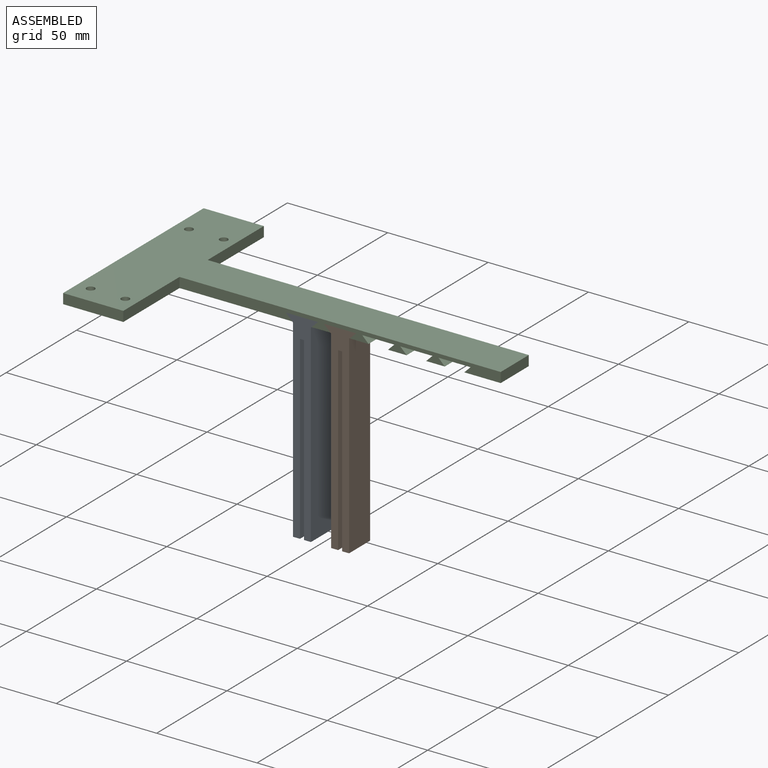
[diagram: assembled view]
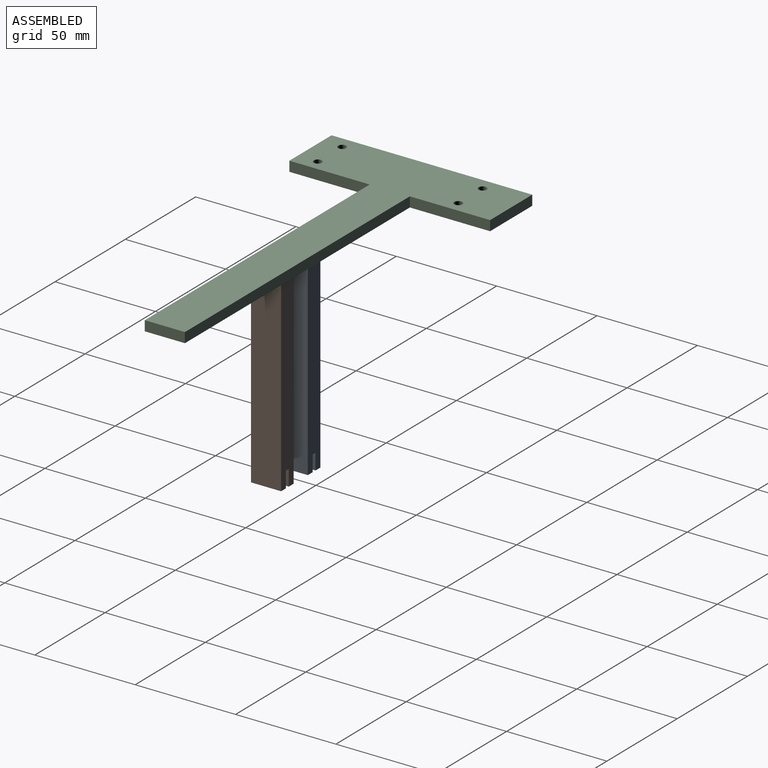
[diagram: assembled view, second angle]
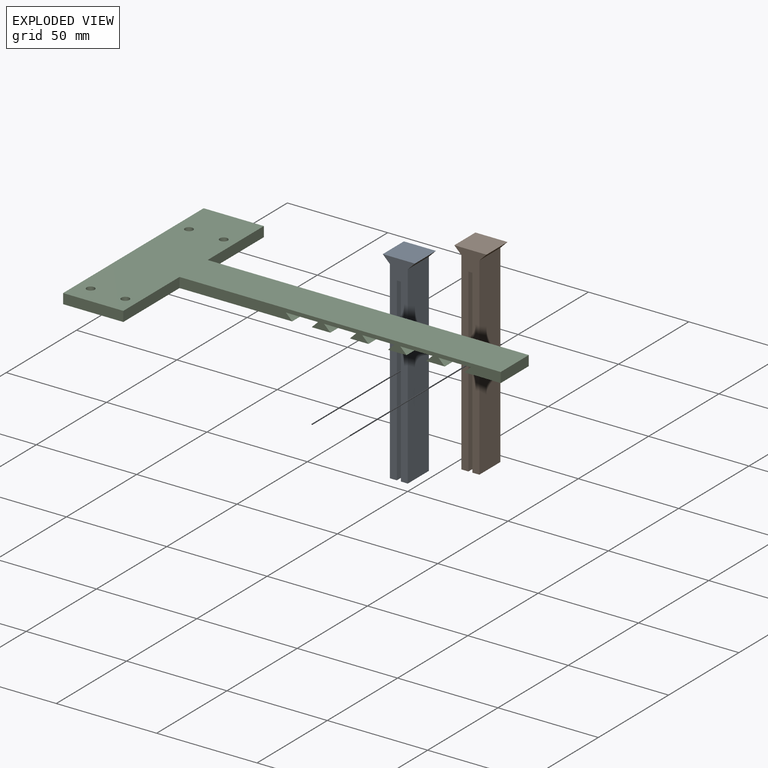
[diagram: exploded view]
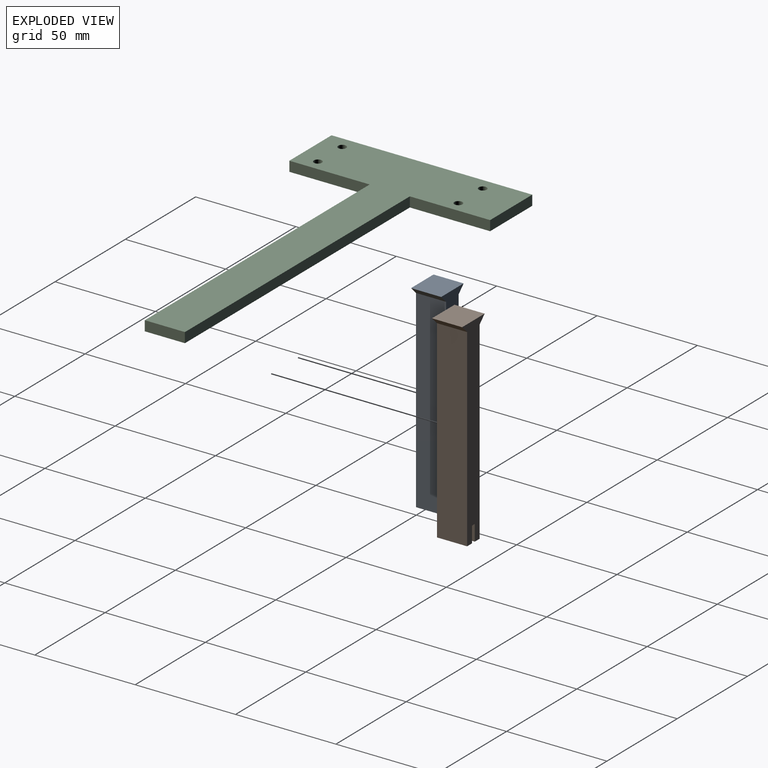
[diagram: exploded view, second angle]
ASSEMBLY  parts=3 mates=2
PART A: 14 faces, bbox 16x15x100 mm
  f0: plane 15x3.46mm, normal (0,0,-1), area 51.9mm2, adj f3,f7,f8,f10
  f1: plane 16x15mm, normal (0,0,1), area 240mm2, adj f2,f6,f7,f8
  f2: plane 15x3.54mm, normal (-0.71,0,-0.71), area 75mm2, adj f1,f3,f7,f8
  f3: plane 96.46x15mm, normal (-1,0,0), area 1447mm2, adj f0,f2,f7,f8
  f4: plane 15x3.47mm, normal (0,0,-1), area 52mm2, adj f5,f7,f8,f9
  f5: plane 96.46x15mm, normal (1,0,0), area 1447mm2, adj f4,f6,f7,f8
  f6: plane 15x3.54mm, normal (0.71,0,-0.71), area 75mm2, adj f1,f5,f7,f8
  f7: plane 100x16mm, normal (0,-1,0), area 889.4mm2, adj f0,f1,f2,f3,f4,f5,f6,f9
  f8: plane 100x16mm, normal (0,1,0), area 725.4mm2, adj f0,f1,f2,f3,f4,f5,f6,f9
  f9: plane 90x15mm, normal (-1,0,0), area 530mm2, adj f4,f7,f8,f11,f12,f13
  f10: plane 90x15mm, normal (1,0,0), area 530mm2, adj f0,f7,f8,f11,f12,f13
  f11: plane 5x2mm, normal (0,0,-1), area 10mm2, adj f8,f9,f10,f12
  f12: plane 82x2mm, normal (0,1,0), area 164mm2, adj f9,f10,f11,f13
  f13: plane 10x2mm, normal (0,0,-1), area 20mm2, adj f7,f9,f10,f12
PART B: same geometry as A
PART C: 63 faces, bbox 190x100x5 mm
  f0: cylinder r=2mm len=4mm, axis (0,0,-1), area 37.7mm2, adj f12,f40
  f1: cylinder r=2mm len=4mm, axis (0,0,-1), area 37.7mm2, adj f12,f62
  f2: cylinder r=2mm len=4mm, axis (0,0,-1), area 37.7mm2, adj f12,f55
  f3: cylinder r=2mm len=4mm, axis (0,0,-1), area 37.7mm2, adj f12,f48
  f4: plane 100x5mm, normal (-1,0,0), area 500mm2, adj f5,f11,f12,f13
  f5: plane 30x5mm, normal (0,-1,0), area 150mm2, adj f4,f6,f12,f13
  f6: plane 40x5mm, normal (1,0,0), area 200mm2, adj f5,f7,f12,f13
  f7: plane 160x5mm, normal (0,-1,0), area 598.1mm2, adj f6,f8,f12,f13,f14,f15,f16,f18
  f8: plane 20x5mm, normal (1,0,0), area 100mm2, adj f7,f9,f12,f13
  f9: plane 160x5mm, normal (0,1,0), area 800mm2, adj f8,f10,f12,f13
  f10: plane 40x5mm, normal (1,0,0), area 200mm2, adj f9,f11,f12,f13
  f11: plane 30x5mm, normal (0,1,0), area 150mm2, adj f4,f10,f12,f13
  f12: plane 190x100mm, normal (0,0,1), area 6149.7mm2, adj f0,f1,f2,f3,f4,f5,f6,f7
  f13: plane 190x100mm, normal (0,0,-1), area 5302.1mm2, adj f4,f5,f6,f7,f8,f9,f10,f11
  f14: plane 15x3.14mm, normal (0.71,0,0.71), area 66.6mm2, adj f7,f13,f16,f17
  f15: plane 15x3.14mm, normal (-0.71,0,0.71), area 66.6mm2, adj f7,f13,f16,f17
  f16: plane 16x15mm, normal (0,0,-1), area 240mm2, adj f7,f14,f15,f17
  f17: plane 16x3.14mm, normal (0,-1,0), area 40.4mm2, adj f13,f14,f15,f16
  f18: plane 15x3.14mm, normal (0.71,0,0.71), area 66.6mm2, adj f7,f13,f20,f21
  f19: plane 15x3.14mm, normal (-0.71,0,0.71), area 66.6mm2, adj f7,f13,f20,f21
  f20: plane 16x15mm, normal (0,0,-1), area 240mm2, adj f7,f18,f19,f21
  f21: plane 16x3.14mm, normal (0,-1,0), area 40.4mm2, adj f13,f18,f19,f20
  f22: plane 15x3.14mm, normal (0.71,0,0.71), area 66.6mm2, adj f7,f13,f24,f25
  f23: plane 15x3.14mm, normal (-0.71,0,0.71), area 66.6mm2, adj f7,f13,f24,f25
  f24: plane 16x15mm, normal (0,0,-1), area 240mm2, adj f7,f22,f23,f25
  f25: plane 16x3.14mm, normal (0,-1,0), area 40.4mm2, adj f13,f22,f23,f24
  f26: plane 15x3.14mm, normal (0.71,0,0.71), area 66.6mm2, adj f7,f13,f28,f29
  f27: plane 15x3.14mm, normal (-0.71,0,0.71), area 66.6mm2, adj f7,f13,f28,f29
  f28: plane 16x15mm, normal (0,0,-1), area 240mm2, adj f7,f26,f27,f29
  f29: plane 16x3.14mm, normal (0,-1,0), area 40.4mm2, adj f13,f26,f27,f28
  f30: plane 15x3.14mm, normal (0.71,0,0.71), area 66.6mm2, adj f7,f13,f32,f33
  f31: plane 15x3.14mm, normal (-0.71,0,0.71), area 66.6mm2, adj f7,f13,f32,f33
  f32: plane 16x15mm, normal (0,0,-1), area 240mm2, adj f7,f30,f31,f33
  f33: plane 16x3.14mm, normal (0,-1,0), area 40.4mm2, adj f13,f30,f31,f32
  f34: plane 3.5x2.02mm, normal (0.87,-0.5,0), area 8.1mm2, adj f13,f35,f39,f40
  f35: plane 4.04x2mm, normal (0,-1,0), area 8.1mm2, adj f13,f34,f36,f40
  f36: plane 3.5x2.02mm, normal (-0.87,-0.5,0), area 8.1mm2, adj f13,f35,f37,f40
  f37: plane 3.5x2.02mm, normal (-0.87,0.5,0), area 8.1mm2, adj f13,f36,f38,f40
  f38: plane 4.04x2mm, normal (0,1,0), area 8.1mm2, adj f13,f37,f39,f40
  f39: plane 3.5x2.02mm, normal (0.87,0.5,0), area 8.1mm2, adj f13,f34,f38,f40
  f40: plane 8.08x7mm, normal (0,0,-1), area 29.9mm2, adj f0,f34,f35,f36,f37,f38,f39
  f41: plane 4.04x2mm, normal (0,-1,0), area 8.1mm2, adj f13,f42,f47,f48
  f42: plane 3.5x2.02mm, normal (-0.87,-0.5,0), area 8.1mm2, adj f13,f41,f43,f48
  f43: plane 3.5x2.02mm, normal (-0.87,0.5,0), area 8.1mm2, adj f13,f42,f44,f48
  f44: plane 2.02x2mm, normal (0,1,0), area 4mm2, adj f13,f43,f45,f48
  f45: cylinder r=3.5mm len=3.03mm, axis (0,0,-1), area 7.3mm2, adj f13,f44,f46,f48
  f46: plane 2x1.75mm, normal (0.87,0.5,0), area 4mm2, adj f13,f45,f47,f48
  f47: plane 3.5x2.02mm, normal (0.87,-0.5,0), area 8.1mm2, adj f13,f41,f46,f48
  f48: plane 8.08x7mm, normal (0,0,-1), area 29.2mm2, adj f3,f41,f42,f43,f44,f45,f46,f47
  f49: plane 4.04x2mm, normal (0,1,0), area 8.1mm2, adj f13,f50,f54,f55
  f50: plane 3.5x2.02mm, normal (0.87,0.5,0), area 8.1mm2, adj f13,f49,f51,f55
  f51: plane 3.5x2.02mm, normal (0.87,-0.5,0), area 8.1mm2, adj f13,f50,f52,f55
  f52: plane 4.04x2mm, normal (0,-1,0), area 8.1mm2, adj f13,f51,f53,f55
  f53: plane 3.5x2.02mm, normal (-0.87,-0.5,0), area 8.1mm2, adj f13,f52,f54,f55
  f54: plane 3.5x2.02mm, normal (-0.87,0.5,0), area 8.1mm2, adj f13,f49,f53,f55
  f55: plane 8.08x7mm, normal (0,0,-1), area 29.9mm2, adj f2,f49,f50,f51,f52,f53,f54
  f56: plane 4.04x2mm, normal (0,1,0), area 8.1mm2, adj f13,f57,f61,f62
  f57: plane 3.5x2.02mm, normal (0.87,0.5,0), area 8.1mm2, adj f13,f56,f58,f62
  f58: plane 3.5x2.02mm, normal (0.87,-0.5,0), area 8.1mm2, adj f13,f57,f59,f62
  f59: plane 4.04x2mm, normal (0,-1,0), area 8.1mm2, adj f13,f58,f60,f62
  f60: plane 3.5x2.02mm, normal (-0.87,-0.5,0), area 8.1mm2, adj f13,f59,f61,f62
  f61: plane 3.5x2.02mm, normal (-0.87,0.5,0), area 8.1mm2, adj f13,f56,f60,f62
  f62: plane 8.08x7mm, normal (0,0,-1), area 29.9mm2, adj f1,f56,f57,f58,f59,f60,f61
PLACE A rot(axis=(0,0,1),180deg) t=(17.62,-11.47,-12.22)mm
PLACE B rot(axis=(0,0,1),180deg) t=(36.62,-11.47,-12.22)mm
PLACE C t=(-15.36,-8.97,6.93)mm fixed
MATE fastened C.f7 <-> B.f8  axis (0,-1,0) through (64.64,-18.97,10.07)mm
MATE fastened A.f8 <-> C.f7  axis (0,-1,0) through (45.64,-18.97,10.07)mm
